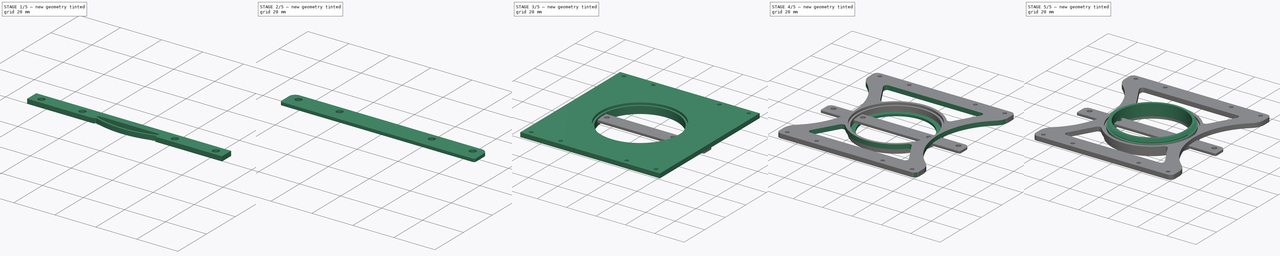
[diagram: build sequence overview — one tinted view per stage of 5, left to right]
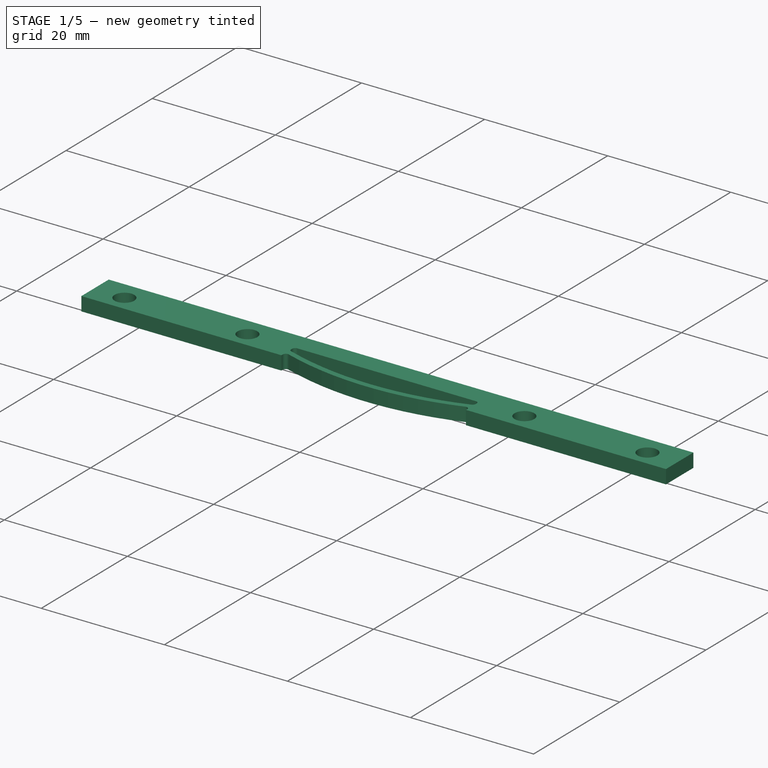
[diagram: stage 1 of 5 — iso view after this stage's code; geometry added in this stage tinted green]
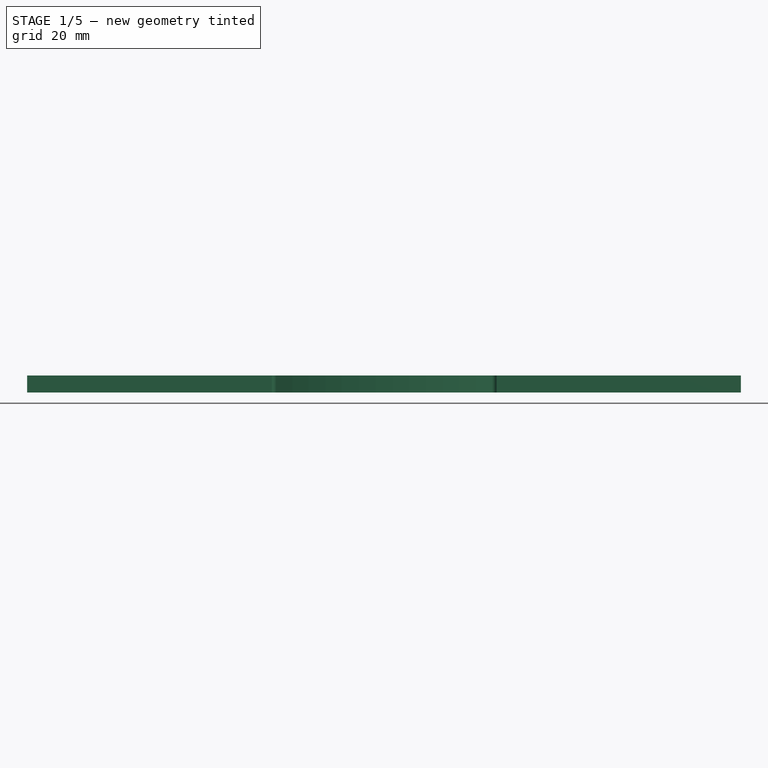
[diagram: stage 1 of 5 — front view after this stage's code; geometry added in this stage tinted green]
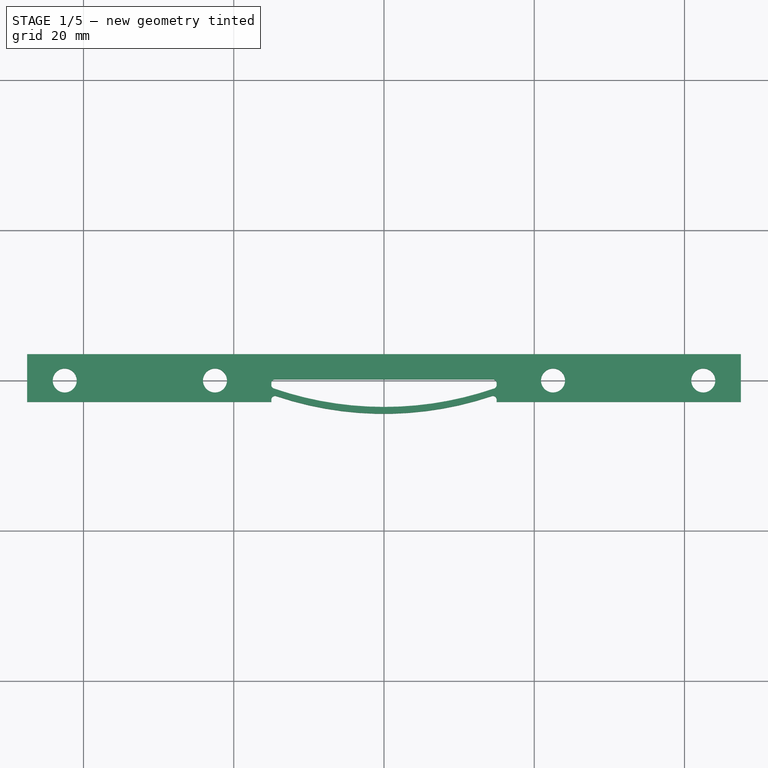
[diagram: stage 1 of 5 — top view after this stage's code; geometry added in this stage tinted green]
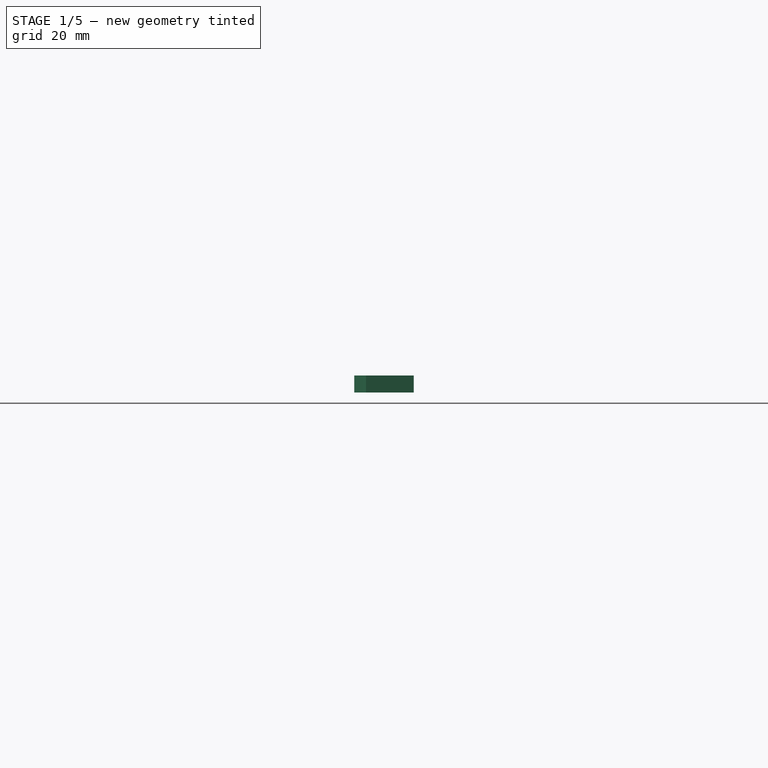
[diagram: stage 1 of 5 — right view after this stage's code; geometry added in this stage tinted green]
FCSTD DOCUMENT  (FreeCAD 1.0R39109 (Git))
Label: cokin-holder
License: All rights reserved
LicenseURL: http://en.wikipedia.org/wiki/All_rights_reserved
objects: Sketcher::SketchObject×14, PartDesign::Pad×8, PartDesign::Fillet×6, PartDesign::Body×4, PartDesign::Pocket×4, PartDesign::AdditiveHelix×1, PartDesign::Groove×1, PartDesign::SubShapeBinder×1, Spreadsheet::Sheet×1
note: 93 computed .brp shape members not serialized (recipe doc carries the construction recipe); baked Part::Feature solids carry a one-line shape summary decoded from their .brp

FEATURE [PartDesign::Body] Body001  label="filter-holder"
  AllowCompound = false
  Group = -> [Sketch006,Pad003,Sketch007,Pad004,Sketch008,Pocket,Sketch009,Pocket001,Sketch010,Pocket002,Fillet,Fillet001]
  Origin = -> Origin001
  Tip = -> Fillet001
FEATURE [Sketcher::SketchObject] Sketch011
  ArcFitTolerance = 1e-06
  AttachmentSupport = -> [XY_Plane002]
  FullyConstrained = true
  MakeInternals = false
  MapMode = 5
  sketch-geometry (8):
    g0: Circle CenterX=-42.5 CenterY=0 CenterZ=0 NormalX=0 NormalY=0 NormalZ=1 AngleXU=0 Radius=1.6
    g1: Circle CenterX=42.5 CenterY=0 CenterZ=0 NormalX=0 NormalY=0 NormalZ=1 AngleXU=0 Radius=1.6
    g2: LineSegment StartX=-47.5 StartY=3.5 StartZ=0 EndX=-47.5 EndY=-2.85 EndZ=0
    g3: LineSegment StartX=-47.5 StartY=-2.85 StartZ=0 EndX=47.5 EndY=-2.85 EndZ=0
    g4: LineSegment StartX=47.5 StartY=-2.85 StartZ=0 EndX=47.5 EndY=3.5 EndZ=0
    g5: LineSegment StartX=47.5 StartY=3.5 StartZ=0 EndX=-47.5 EndY=3.5 EndZ=0
    g6: Circle CenterX=-22.5 CenterY=0 CenterZ=0 NormalX=0 NormalY=0 NormalZ=1 AngleXU=0 Radius=1.6
    g7: Circle CenterX=22.5 CenterY=0 CenterZ=0 NormalX=0 NormalY=0 NormalZ=1 AngleXU=0 Radius=1.6
  constraints (21):
    c: PointOnObject(g0,g-1)
    c: Symmetric(g0,g1,g-2)
    c: Diameter(g0) = 3.2
    c: Equal(g0,g1)
    c: DistanceX(g0,g1) = 85
    c: Coincident(g2,g3)
    c: Coincident(g3,g4)
    c: Coincident(g4,g5)
    c: Coincident(g5,g2)
    c: Vertical(g2)
    c: Vertical(g4)
    c: Horizontal(g3)
    c: Symmetric(g4,g2,g-2)
    c: Distance(g5,g5) = 95
    c: Distance(g0,g5) = 3.5
    c: Distance(g0,g3) = 2.85
    c: PointOnObject(g6,g-1)
    c: Symmetric(g6,g7,g-2)
    c: Equal(g6,g7)
    c: Equal(g7,g0)
    c: DistanceX(g6,g7) = 45
FEATURE [PartDesign::Pad] Pad005
  Direction = (0,0,1)
  Length = 2.25
  Length2 = 10
  Profile = -> Sketch011
  ReferenceAxis = -> Sketch011 [N_Axis]
  Suppressed = false
  Type = 0
FEATURE [Sketcher::SketchObject] Sketch012
  ArcFitTolerance = 1e-06
  AttachmentSupport = -> [XY_Plane002]
  ExternalGeometry = -> [Pad005]
  FullyConstrained = true
  MakeInternals = false
  MapMode = 5
  sketch-geometry (4):
    g0: LineSegment StartX=-15 StartY=-2.85 StartZ=0 EndX=15 EndY=-2.85 EndZ=0
    g1: LineSegment StartX=15 StartY=-2.85 StartZ=0 EndX=15 EndY=0.15 EndZ=0
    g2: LineSegment StartX=15 StartY=0.15 StartZ=0 EndX=-15 EndY=0.15 EndZ=0
    g3: LineSegment StartX=-15 StartY=0.15 StartZ=0 EndX=-15 EndY=-2.85 EndZ=0
  constraints (11):
    c: Coincident(g0,g1)
    c: Coincident(g1,g2)
    c: Coincident(g2,g3)
    c: Coincident(g3,g0)
    c: Horizontal(g2)
    c: Vertical(g1)
    c: Vertical(g3)
    c: PointOnObject(g0,g-3)
    c: Symmetric(g0,g0,g-2)
    c: DistanceX(g2,g2) = 30
    c: Distance(g3,g3) = 3
FEATURE [PartDesign::Pocket] Pocket003
  BaseFeature = -> Pad005
  Direction = (0,0,-1)
  Length = 5
  Length2 = 5
  Midplane = true
  Profile = -> Sketch012
  ReferenceAxis = -> Sketch012 [N_Axis]
  Suppressed = false
  Type = 1
FEATURE [Sketcher::SketchObject] Sketch013
  ArcFitTolerance = 1e-06
  AttachmentSupport = -> [XY_Plane002]
  ExternalGeometry = -> [Pocket003]
  FullyConstrained = true
  MakeInternals = false
  MapMode = 5
  sketch-geometry (4):
    g0: ArcOfCircle CenterX=0 CenterY=40.5764 CenterZ=0 NormalX=0 NormalY=0 NormalZ=1 AngleXU=0 Radius=45 StartAngle=4.37255 EndAngle=5.05223
    g1: ArcOfCircle CenterX=0 CenterY=41.4764 CenterZ=0 NormalX=0 NormalY=0 NormalZ=1 AngleXU=0 Radius=45 StartAngle=4.37255 EndAngle=5.05223
    g2: LineSegment StartX=-15 StartY=-0.95 StartZ=0 EndX=-15 EndY=-1.85 EndZ=0
    g3: LineSegment StartX=15 StartY=-0.95 StartZ=0 EndX=15 EndY=-1.85 EndZ=0
  constraints (14):
    c: PointOnObject(g0,g-2)
    c: PointOnObject(g0,g-5)
    c: PointOnObject(g0,g-6)
    c: Radius(g0) = 45
    c: Distance(g0,g-5) = 2
    c: PointOnObject(g1,g-2)
    c: PointOnObject(g1,g-5)
    c: PointOnObject(g1,g-6)
    c: Equal(g1,g0)
    c: Distance(g1,g0) = 0.9
    c: Coincident(g2,g1)
    c: Coincident(g2,g0)
    c: Coincident(g3,g1)
    c: Coincident(g3,g0)
FEATURE [PartDesign::Pad] Pad006
  BaseFeature = -> Pocket003
  Direction = (0,0,1)
  Length = 10
  Length2 = 10
  Profile = -> Sketch013
  ReferenceAxis = -> Sketch013 [N_Axis]
  Suppressed = false
  Type = 3
  UpToFace = -> Pocket003 [Face5]
FEATURE [PartDesign::Fillet] Fillet002
  Base = -> Pad006 [Edge43,Edge45,Edge46,Edge44,Edge38,Edge40]
  BaseFeature = -> Pad006
  Radius = 0.5
  SupportTransform = false
  Suppressed = false
  UseAllEdges = false
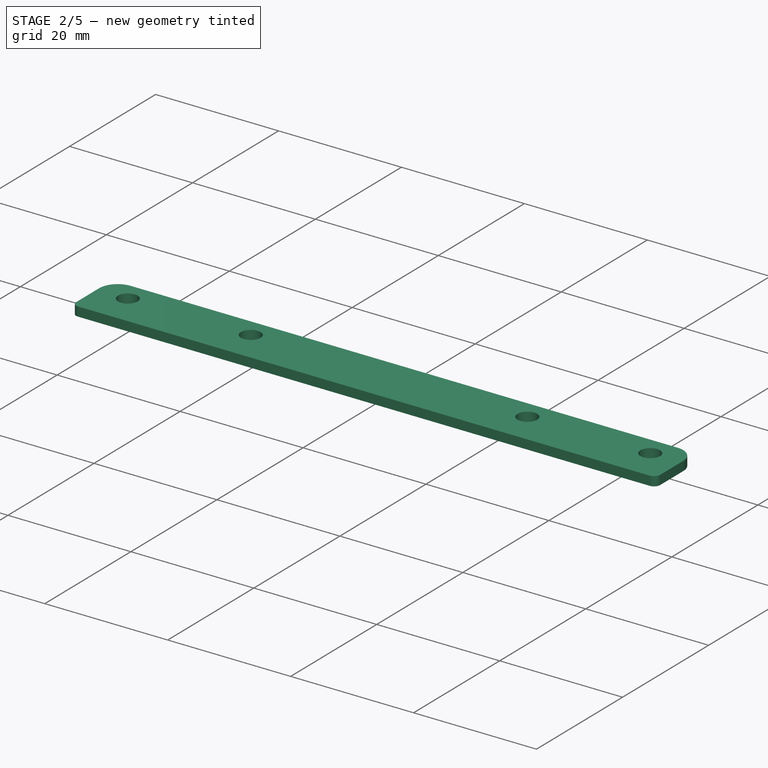
[diagram: stage 2 of 5 — iso view after this stage's code; geometry added in this stage tinted green]
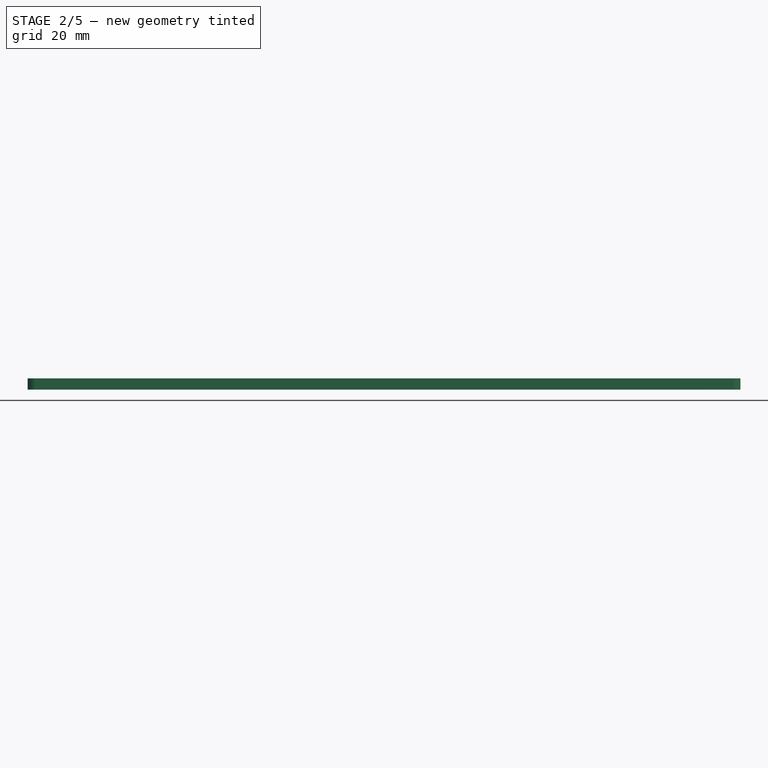
[diagram: stage 2 of 5 — front view after this stage's code; geometry added in this stage tinted green]
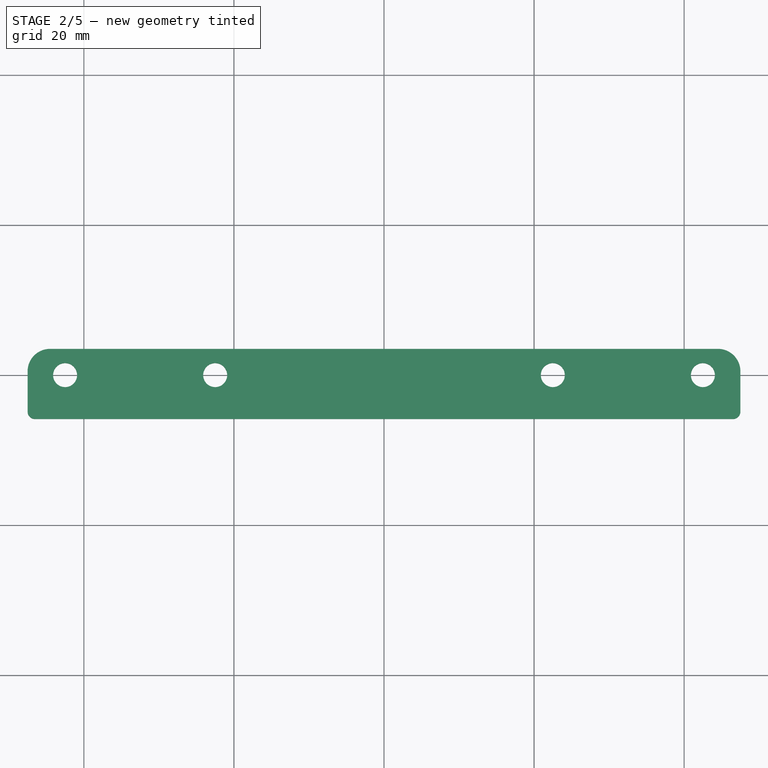
[diagram: stage 2 of 5 — top view after this stage's code; geometry added in this stage tinted green]
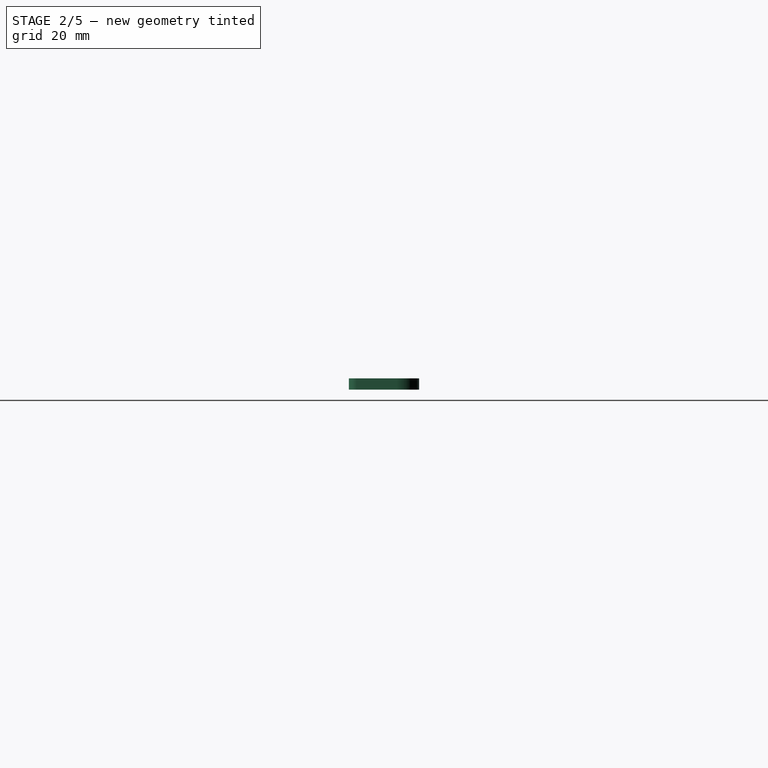
[diagram: stage 2 of 5 — right view after this stage's code; geometry added in this stage tinted green]
FEATURE [PartDesign::Fillet] Fillet004
  Base = -> Fillet002 [Edge25,Edge45]
  BaseFeature = -> Fillet002
  Radius = 0.2
  SupportTransform = false
  Suppressed = false
  UseAllEdges = false
FEATURE [PartDesign::Fillet] Fillet003
  Base = -> Fillet004 [Edge45,Edge36]
  BaseFeature = -> Fillet004
  Radius = 1
  SupportTransform = false
  Suppressed = false
  UseAllEdges = false
FEATURE [PartDesign::Fillet] Fillet005
  Base = -> Fillet003 [Edge38,Edge34]
  BaseFeature = -> Fillet003
  Radius = 3
  SupportTransform = false
  Suppressed = false
  UseAllEdges = false
FEATURE [PartDesign::Body] Body002  label="spring-plate"
  AllowCompound = false
  Group = -> [Sketch011,Pad005,Sketch012,Pocket003,Sketch013,Pad006,Fillet002,Fillet004,Fillet003,Fillet005]
  Origin = -> Origin002
  Tip = -> Fillet005
FEATURE [PartDesign::SubShapeBinder] Binder
  BindCopyOnChange = 0
  BindMode = 0
  ClaimChildren = false
  Context = -> Body003 [Binder.]
  Fuse = false
  MakeFace = true
  OffsetFill = false
  OffsetIntersection = false
  OffsetJoinType = 0
  OffsetOpenResult = false
  PartialLoad = false
  Relative = true
  Support = -> [Body002[Fillet005.Face25]]
  _Version = 2
FEATURE [Sketcher::SketchObject] Sketch014
  ArcFitTolerance = 1e-06
  AttachmentSupport = -> [Binder]
  ExternalGeometry = -> [Binder]
  FullyConstrained = true
  MakeInternals = false
  MapMode = 5
  Placement = pos=(0,0,2.25) rot=(0,0,1;0rad)
  sketch-geometry (16):
    g0: LineSegment StartX=-47.5 StartY=0.5 StartZ=0 EndX=-47.5 EndY=-4.85 EndZ=0
    g1: LineSegment StartX=-46.5 StartY=-5.85 StartZ=0 EndX=46.5 EndY=-5.85 EndZ=0
    g2: LineSegment StartX=47.5 StartY=-4.85 StartZ=0 EndX=47.5 EndY=0.5 EndZ=0
    g3: LineSegment StartX=44.5 StartY=3.5 StartZ=0 EndX=-44.5 EndY=3.5 EndZ=0
    g4: ArcOfCircle CenterX=44.5 CenterY=0.5 CenterZ=0 NormalX=0 NormalY=0 NormalZ=1 AngleXU=0 Radius=3 StartAngle=0 EndAngle=1.5708
    g5: GeomPoint [constr] X=47.5 Y=3.5 Z=0
    g6: ArcOfCircle CenterX=-44.5 CenterY=0.5 CenterZ=0 NormalX=0 NormalY=0 NormalZ=1 AngleXU=0 Radius=3 StartAngle=1.5708 EndAngle=3.14159
    g7: GeomPoint [constr] X=-47.5 Y=3.5 Z=0
    g8: Circle CenterX=-42.5 CenterY=0 CenterZ=0 NormalX=0 NormalY=0 NormalZ=1 AngleXU=0 Radius=1.6
    g9: Circle CenterX=-22.5 CenterY=0 CenterZ=0 NormalX=0 NormalY=0 NormalZ=1 AngleXU=0 Radius=1.6
    g10: Circle CenterX=22.5 CenterY=0 CenterZ=0 NormalX=0 NormalY=0 NormalZ=1 AngleXU=0 Radius=1.6
    g11: Circle CenterX=42.5 CenterY=0 CenterZ=0 NormalX=0 NormalY=0 NormalZ=1 AngleXU=0 Radius=1.6
    g12: ArcOfCircle CenterX=-46.5 CenterY=-4.85 CenterZ=0 NormalX=0 NormalY=0 NormalZ=1 AngleXU=0 Radius=1 StartAngle=3.14159 EndAngle=4.71239
    g13: GeomPoint [constr] X=-47.5 Y=-5.85 Z=0
    g14: ArcOfCircle CenterX=46.5 CenterY=-4.85 CenterZ=0 NormalX=0 NormalY=0 NormalZ=1 AngleXU=0 Radius=1 StartAngle=4.71239 EndAngle=6.28319
    g15: GeomPoint [constr] X=47.5 Y=-5.85 Z=0
  constraints (36):
    c: Vertical(g0)
    c: Vertical(g2)
    c: Horizontal(g1)
    c: Horizontal(g3)
    c: PointOnObject(g-5,g3)
    c: PointOnObject(g-4,g0)
    c: PointOnObject(g-6,g2)
    c: PointOnObject(g5,g3)
    c: PointOnObject(g5,g2)
    c: Tangent(g3,g4) = -1.5708
    c: Tangent(g2,g4) = -1.5708
    c: PointOnObject(g7,g3)
    c: PointOnObject(g7,g0)
    c: Tangent(g3,g6) = -1.5708
    c: Tangent(g0,g6) = -1.5708
    c: Equal(g-5,g6)
    c: Equal(g4,g6)
    c: Distance(g13,g-7) = 3
    c: Coincident(g8,g-8)
    c: Coincident(g9,g-9)
    c: Coincident(g10,g-10)
    c: Coincident(g11,g-11)
    c: Equal(g-8,g8)
    c: Equal(g-9,g9)
    c: Equal(g-10,g10)
    c: Equal(g-11,g11)
    c: PointOnObject(g13,g0)
    c: PointOnObject(g13,g1)
    c: Tangent(g0,g12) = -1.5708
    c: Tangent(g1,g12) = -1.5708
    c: PointOnObject(g15,g2)
    c: PointOnObject(g15,g1)
    c: Tangent(g2,g14) = -1.5708
    c: Tangent(g1,g14) = -1.5708
    c: Equal(g14,g12)
    c: Radius(g12) = 1
FEATURE [PartDesign::Pad] Pad007
  Direction = (0,0,1)
  Length = 1.5
  Length2 = 10
  Profile = -> Sketch014
  ReferenceAxis = -> Sketch014 [N_Axis]
  Suppressed = false
  Type = 0
FEATURE [PartDesign::Body] Body003  label="separator-plate"
  AllowCompound = false
  Group = -> [Binder,Sketch014,Pad007]
  Origin = -> Origin003
  Tip = -> Pad007
FEATURE [Spreadsheet::Sheet] Spreadsheet  label="Dimensions"
  cells = A1='Parameter; B1='Value; D1='Description; A2='FrictionRingInterference; B2(FrictionRingInterference)==0.1 mm; D2='Tune for reasonably tight fit; filter holder must resist but allow for rotation.; A3='FrictionRingLip; B3(FrictionRingLip)==1 mm; A4='FrictionRingLipDiameter; B4(FrictionRingLipDiameter)==FrictionRingOuterDiameter + 2 * FrictionRingLip; A5='FrictionRingLipDepth; B5(FrictionRingLipDepth)==1.5 mm; A6='ThreadNominalDiameter; B6(ThreadNominalDiameter)==49 mm; D6='Customize for lens (max 67mm); A7='ThreadDepth; B7(ThreadDepth)==3 mm; D7='Customize for lens; A8='ThreadPitch; B8(ThreadPitch)==0.75 mm; D8='Customize for lens; A9='ThreadH; B9(ThreadH)==0.866 * ThreadPitch; A10='ThreadHs; B10(ThreadHs)==5 / 8 * ThreadH; A11='ThreadMinorDiameter; B11(ThreadMinorDiameter)==ThreadNominalDiameter - 2 * ThreadHs; A12='ThreadFcs; B12(ThreadFcs)==ThreadPitch / 8; A13='FrictionRingWidth; B13(FrictionRingWidth)==3 mm; A14='FrictionRingDepth; B14(FrictionRingDepth)==5 mm; A15='FrictionRingInnerDiameter; B15(FrictionRingInnerDiameter)==ThreadNominalDiameter - 2 / 3 * FrictionRingWidth * 2; A16='FrictionRingOuterDiameter; B16(FrictionRingOuterDiameter)==ThreadNominalDiameter + 1 / 3 * FrictionRingWidth * 2; A17='PlateDepth; B17(PlateDepth)==3 mm
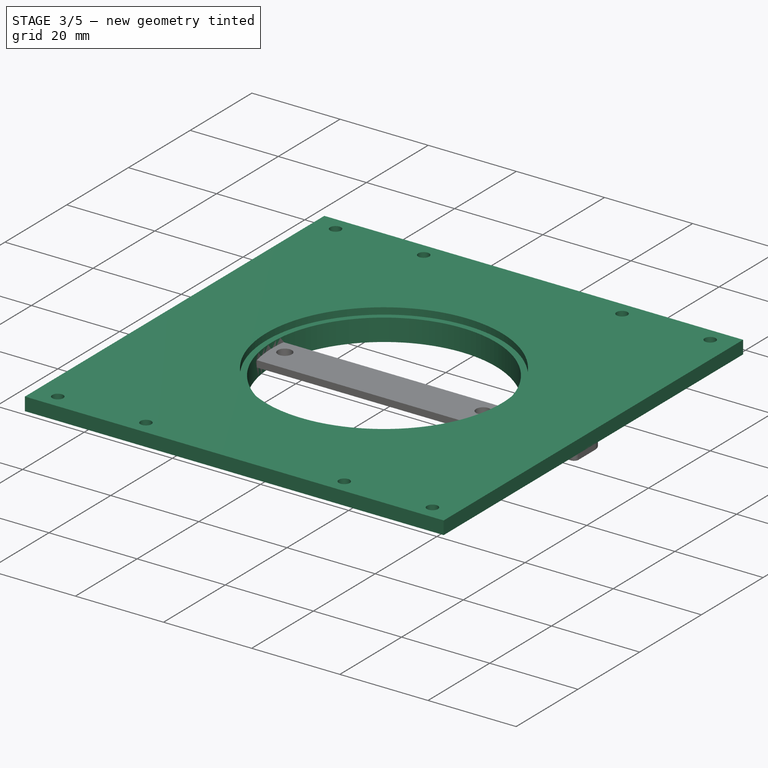
[diagram: stage 3 of 5 — iso view after this stage's code; geometry added in this stage tinted green]
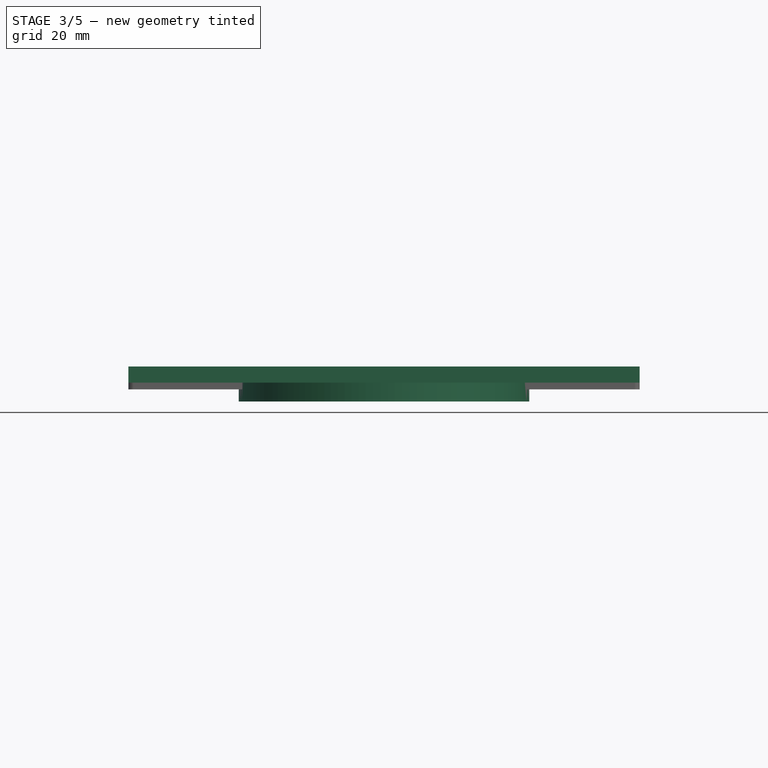
[diagram: stage 3 of 5 — front view after this stage's code; geometry added in this stage tinted green]
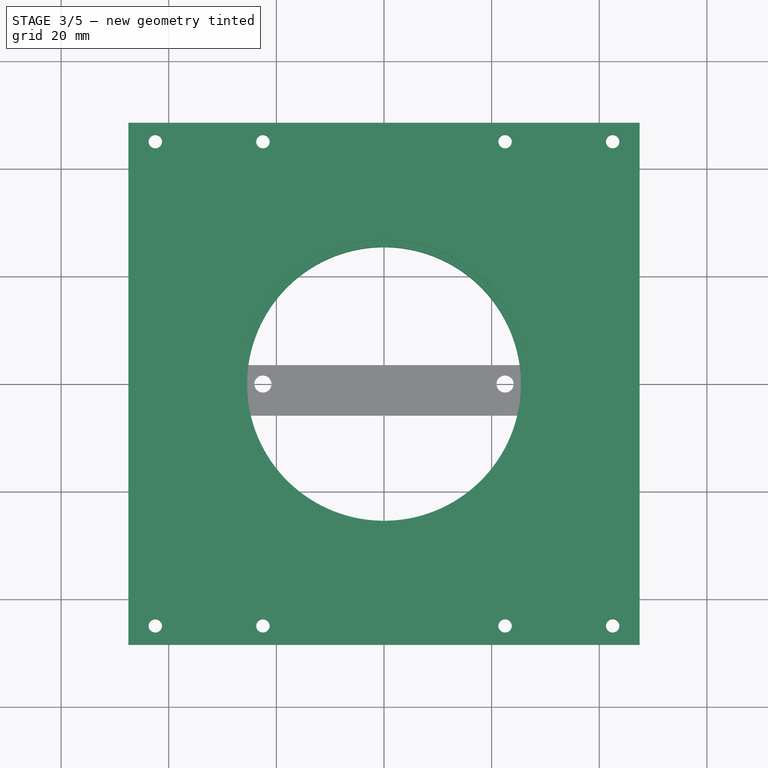
[diagram: stage 3 of 5 — top view after this stage's code; geometry added in this stage tinted green]
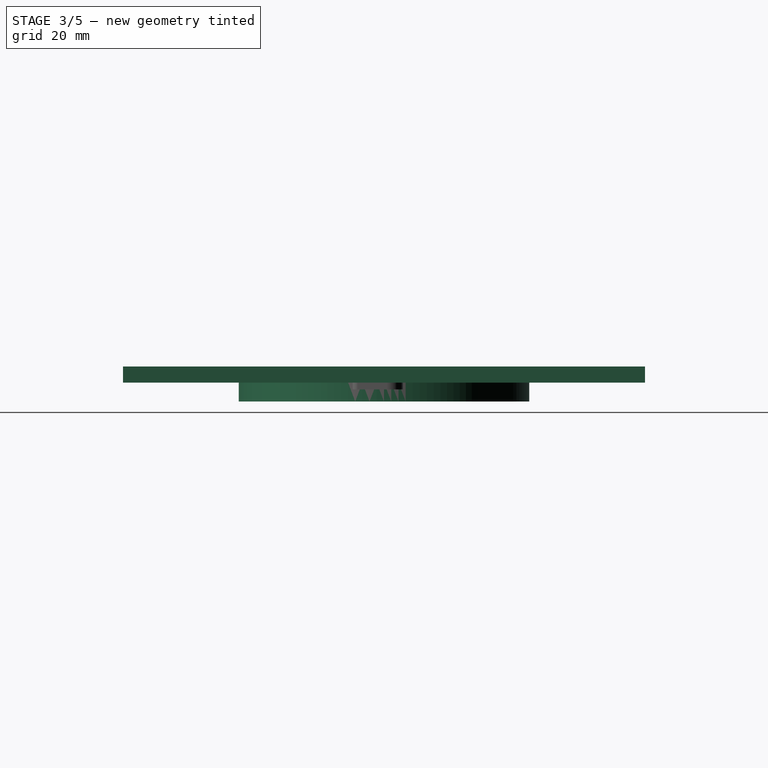
[diagram: stage 3 of 5 — right view after this stage's code; geometry added in this stage tinted green]
FEATURE [PartDesign::Body] Body  label="threaded-cap"
  AllowCompound = false
  Group = -> [Sketch,Pad,Sketch001,Pad001,Sketch002,Pad002,Sketch004,AdditiveHelix,Sketch005,Groove]
  Origin = -> Origin
  Tip = -> Groove
FEATURE [Sketcher::SketchObject] Sketch006
  ArcFitTolerance = 1e-06
  AttachmentSupport = -> [XY_Plane001]
  FullyConstrained = true
  MakeInternals = false
  MapMode = 5
  expr: Constraints[2] = <<Dimensions>>.FrictionRingOuterDiameter - <<Dimensions>>.FrictionRingInterference
  expr: Constraints[3] = <<Dimensions>>.FrictionRingOuterDiameter + <<Dimensions>>.FrictionRingWidth
  sketch-geometry (2):
    g0: Circle CenterX=0 CenterY=0 CenterZ=0 NormalX=0 NormalY=0 NormalZ=1 AngleXU=0 Radius=25.45
    g1: Circle CenterX=0 CenterY=0 CenterZ=0 NormalX=0 NormalY=0 NormalZ=1 AngleXU=0 Radius=27
  constraints (4):
    c: Coincident(g0,g-1)
    c: Coincident(g1,g0)
    c: Diameter(g0) = 50.9
    c: Diameter(g1) = 54
FEATURE [PartDesign::Pad] Pad003  label="FrictionRing001"
  Direction = (0,0,1)
  Length = 3.5
  Length2 = 10
  Profile = -> Sketch006
  ReferenceAxis = -> Sketch006 [N_Axis]
  Suppressed = false
  Type = 0
  expr: Length = <<Dimensions>>.FrictionRingDepth - <<Dimensions>>.FrictionRingLipDepth
FEATURE [Sketcher::SketchObject] Sketch007
  ArcFitTolerance = 1e-06
  AttachmentSupport = -> [Pad003]
  ExternalGeometry = -> [Pad003]
  FullyConstrained = true
  MakeInternals = false
  MapMode = 5
  Placement = pos=(0,0,3.5) rot=(0,0,1;0rad)
  sketch-geometry (6):
    g0: LineSegment StartX=-47.5 StartY=48.5 StartZ=0 EndX=-47.5 EndY=-48.5 EndZ=0
    g1: LineSegment StartX=-47.5 StartY=-48.5 StartZ=0 EndX=47.5 EndY=-48.5 EndZ=0
    g2: LineSegment StartX=47.5 StartY=-48.5 StartZ=0 EndX=47.5 EndY=48.5 EndZ=0
    g3: LineSegment StartX=47.5 StartY=48.5 StartZ=0 EndX=-47.5 EndY=48.5 EndZ=0
    g4: GeomPoint [constr] X=0 Y=0 Z=0
    g5: Circle CenterX=0 CenterY=0 CenterZ=0 NormalX=0 NormalY=0 NormalZ=1 AngleXU=0 Radius=25.45
  constraints (14):
    c: Coincident(g0,g1)
    c: Coincident(g1,g2)
    c: Coincident(g2,g3)
    c: Coincident(g3,g0)
    c: Vertical(g0)
    c: Vertical(g2)
    c: Horizontal(g1)
    c: Horizontal(g3)
    c: Symmetric(g2,g0,g4)
    c: Coincident(g4,g-1)
    c: Coincident(g5,g4)
    c: Equal(g5,g-3)
    c: DistanceX(g3,g3) = 95
    c: DistanceY(g2,g2) = 97
FEATURE [PartDesign::Pad] Pad004  label="Plate"
  BaseFeature = -> Pad003
  Direction = (0,0,1)
  Length = 3
  Length2 = 10
  Profile = -> Sketch007
  ReferenceAxis = -> Sketch007 [N_Axis]
  Suppressed = false
  Type = 0
  expr: Length = <<Dimensions>>.PlateDepth
FEATURE [Sketcher::SketchObject] Sketch008
  ArcFitTolerance = 1e-06
  AttachmentSupport = -> [Pad004]
  FullyConstrained = true
  MakeInternals = false
  MapMode = 5
  Placement = pos=(0,0,6.5) rot=(0,0,1;0rad)
  expr: Constraints[1] = <<Dimensions>>.FrictionRingLipDiameter * 1.01
  sketch-geometry (1):
    g0: Circle CenterX=0 CenterY=0 CenterZ=0 NormalX=0 NormalY=0 NormalZ=1 AngleXU=0 Radius=26.765
  constraints (2):
    c: Coincident(g0,g-1)
    c: Diameter(g0) = 53.53
FEATURE [PartDesign::Pocket] Pocket  label="LipRelief"
  BaseFeature = -> Pad004
  Direction = (0,0,-1)
  Length = 1.5
  Length2 = 5
  Profile = -> Sketch008
  ReferenceAxis = -> Sketch008 [N_Axis]
  Suppressed = false
  Type = 0
  expr: Length = <<Dimensions>>.PlateDepth - <<Dimensions>>.FrictionRingLipDepth
FEATURE [Sketcher::SketchObject] Sketch009
  ArcFitTolerance = 1e-06
  AttachmentSupport = -> [Pocket]
  FullyConstrained = true
  MakeInternals = false
  MapMode = 5
  Placement = pos=(0,0,6.5) rot=(0,0,1;0rad)
  sketch-geometry (10):
    g0: Circle CenterX=-42.5 CenterY=45 CenterZ=0 NormalX=0 NormalY=0 NormalZ=1 AngleXU=0 Radius=1.25
    g1: Circle CenterX=42.5 CenterY=45 CenterZ=0 NormalX=0 NormalY=0 NormalZ=1 AngleXU=0 Radius=1.25
    g2: Circle CenterX=42.5 CenterY=-45 CenterZ=0 NormalX=0 NormalY=0 NormalZ=1 AngleXU=0 Radius=1.25
    g3: Circle CenterX=-42.5 CenterY=-45 CenterZ=0 NormalX=0 NormalY=0 NormalZ=1 AngleXU=0 Radius=1.25
    g4: Circle CenterX=-22.5 CenterY=45 CenterZ=0 NormalX=0 NormalY=0 NormalZ=1 AngleXU=0 Radius=1.25
    g5: Circle CenterX=22.5 CenterY=45 CenterZ=0 NormalX=0 NormalY=0 NormalZ=1 AngleXU=0 Radius=1.25
    g6: LineSegment [constr] StartX=-42.5 StartY=45 StartZ=0 EndX=42.5 EndY=45 EndZ=0
    g7: LineSegment [constr] StartX=-42.5 StartY=-45 StartZ=0 EndX=42.5 EndY=-45 EndZ=0
    g8: Circle CenterX=-22.5 CenterY=-45 CenterZ=0 NormalX=0 NormalY=0 NormalZ=1 AngleXU=0 Radius=1.25
    g9: Circle CenterX=22.5 CenterY=-45 CenterZ=0 NormalX=0 NormalY=0 NormalZ=1 AngleXU=0 Radius=1.25
  constraints (23):
    c: Symmetric(g0,g1,g-2)
    c: Symmetric(g0,g3,g-1)
    c: Symmetric(g3,g2,g-2)
    c: Equal(g0,g1)
    c: Equal(g1,g3)
    c: Equal(g3,g2)
    c: Diameter(g0) = 2.5
    c: DistanceY(g3,g0) = 90
    c: DistanceX(g0,g1) = 85
    c: Symmetric(g4,g5,g-2)
    c: Coincident(g6,g0)
    c: Coincident(g6,g1)
    c: PointOnObject(g4,g6)
    c: DistanceX(g4,g5) = 45
    c: Equal(g4,g0)
    c: Equal(g0,g5)
    c: Coincident(g7,g3)
    c: Coincident(g7,g2)
    c: PointOnObject(g8,g7)
    c: Equal(g8,g3)
    c: Equal(g3,g9)
    c: Symmetric(g8,g9,g-2)
    c: DistanceX(g8,g9) = 45
FEATURE [PartDesign::Pocket] Pocket001  label="ScrewHoles"
  BaseFeature = -> Pocket
  Direction = (0,0,-1)
  Length = 5
  Length2 = 5
  Profile = -> Sketch009
  ReferenceAxis = -> Sketch009 [N_Axis]
  Suppressed = false
  Type = 1
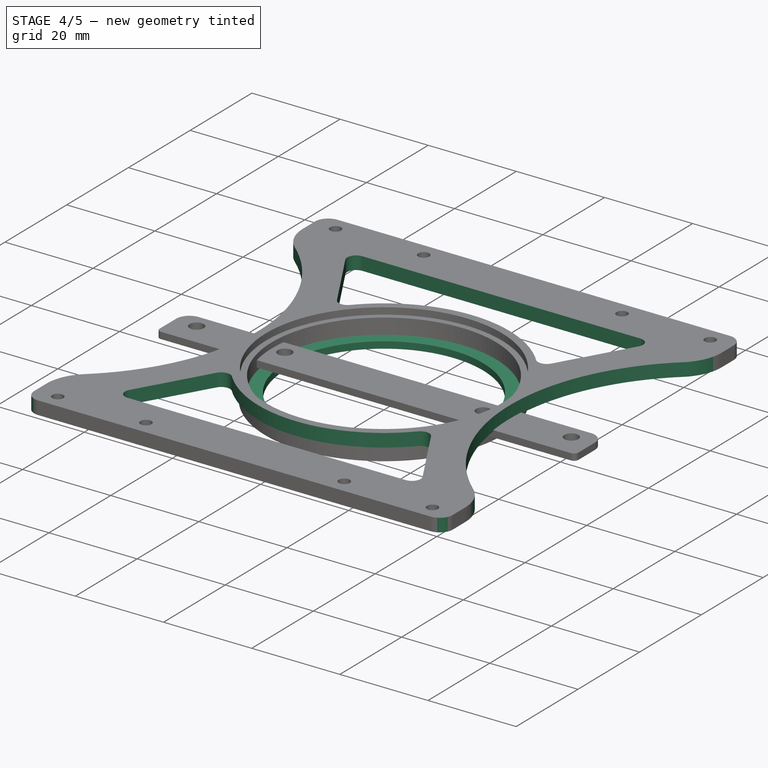
[diagram: stage 4 of 5 — iso view after this stage's code; geometry added in this stage tinted green]
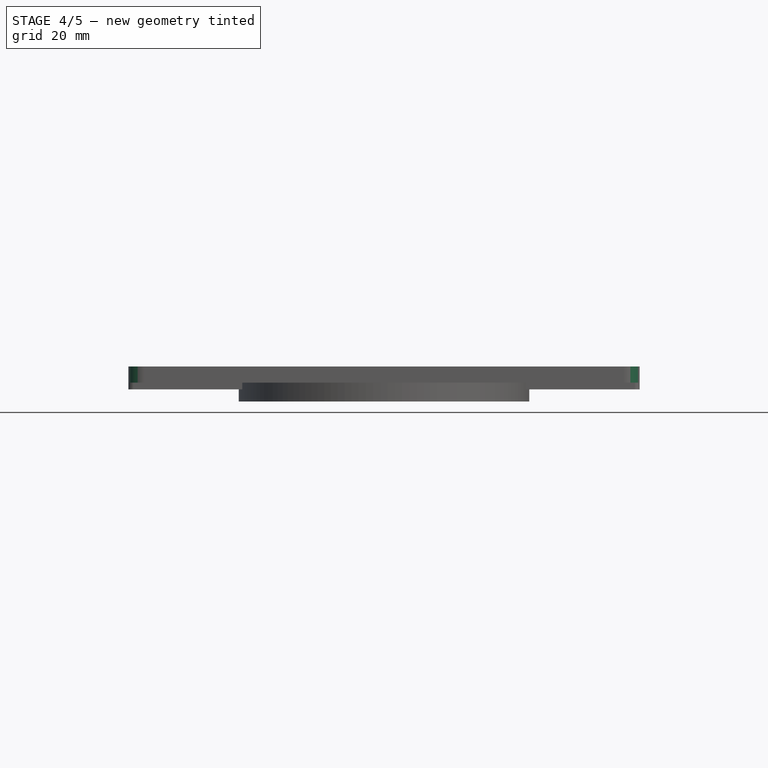
[diagram: stage 4 of 5 — front view after this stage's code; geometry added in this stage tinted green]
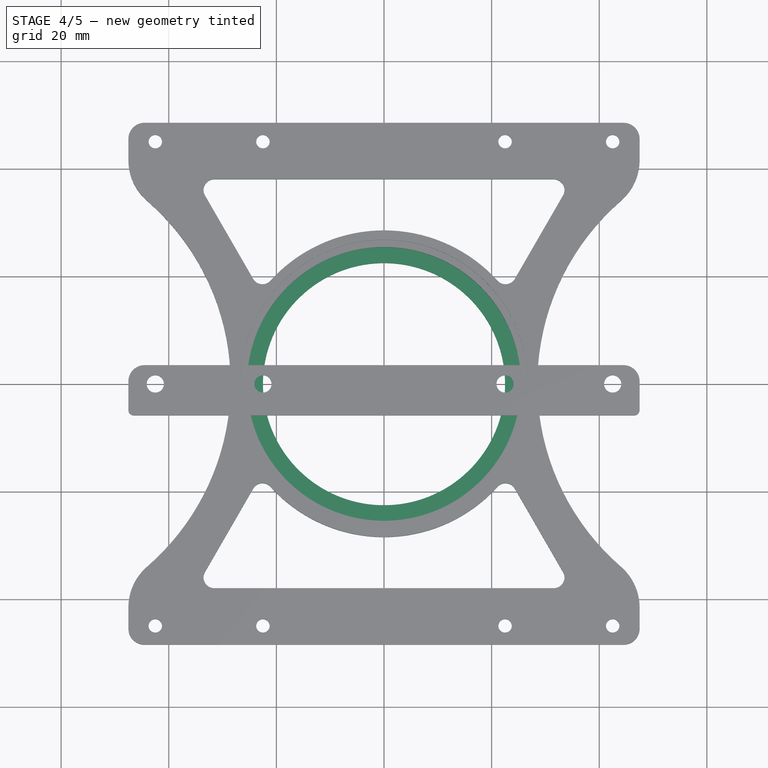
[diagram: stage 4 of 5 — top view after this stage's code; geometry added in this stage tinted green]
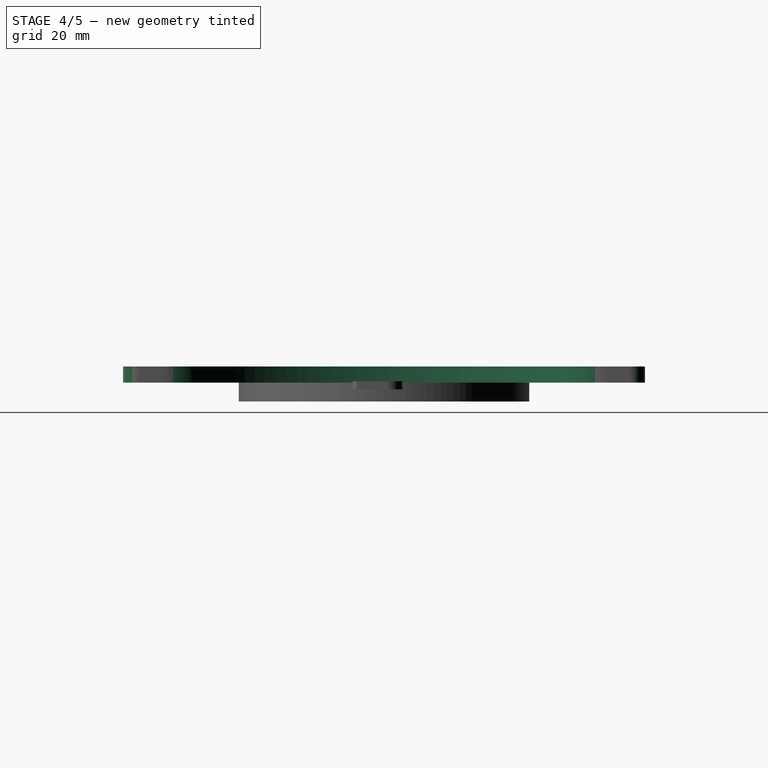
[diagram: stage 4 of 5 — right view after this stage's code; geometry added in this stage tinted green]
FEATURE [Sketcher::SketchObject] Sketch
  ArcFitTolerance = 1e-06
  AttachmentSupport = -> [XY_Plane]
  FullyConstrained = true
  MakeInternals = false
  MapMode = 5
  expr: Constraints[1] = <<Dimensions>>.FrictionRingLipDiameter
  expr: Constraints[3] = <<Dimensions>>.FrictionRingInnerDiameter
  sketch-geometry (2):
    g0: Circle CenterX=0 CenterY=0 CenterZ=0 NormalX=0 NormalY=0 NormalZ=1 AngleXU=0 Radius=26.5
    g1: Circle CenterX=0 CenterY=0 CenterZ=0 NormalX=0 NormalY=0 NormalZ=1 AngleXU=0 Radius=22.5
  constraints (4):
    c: Coincident(g0,g-1)
    c: Diameter(g0) = 53
    c: Coincident(g1,g0)
    c: Diameter(g1) = 45
FEATURE [PartDesign::Pad] Pad  label="Lip"
  Direction = (0,0,1)
  Length = 1.5
  Length2 = 10
  Profile = -> Sketch
  ReferenceAxis = -> Sketch [N_Axis]
  Suppressed = false
  Type = 0
  expr: Length = <<Dimensions>>.FrictionRingLipDepth
FEATURE [Sketcher::SketchObject] Sketch010
  ArcFitTolerance = 1e-06
  AttachmentSupport = -> [Pocket001]
  ExternalGeometry = -> [Pocket001]
  FullyConstrained = true
  MakeInternals = false
  MapMode = 5
  Placement = pos=(0,0,6.5) rot=(0,0,1;0rad)
  expr: Constraints[2] = <<Dimensions>>.ThreadNominalDiameter * 1.5
  expr: Constraints[50] = (<<Dimensions>>.FrictionRingOuterDiameter + 6 mm) / 2
  sketch-geometry (22):
    g0: Circle CenterX=-73.5 CenterY=0 CenterZ=0 NormalX=0 NormalY=0 NormalZ=1 AngleXU=0 Radius=45
    g1: Circle CenterX=73.5 CenterY=0 CenterZ=0 NormalX=0 NormalY=0 NormalZ=1 AngleXU=0 Radius=45
    g2: LineSegment StartX=-31.5359 StartY=38 StartZ=0 EndX=31.5359 EndY=38 EndZ=0
    g3: ArcOfCircle CenterX=0 CenterY=0 CenterZ=0 NormalX=0 NormalY=0 NormalZ=1 AngleXU=0 Radius=28.5 StartAngle=0.73697 EndAngle=2.40462
    g4: LineSegment StartX=-33.2679 StartY=35 StartZ=0 EndX=-24.3175 EndY=19.4974 EndZ=0
    g5: LineSegment StartX=33.2679 StartY=35 StartZ=0 EndX=24.3175 EndY=19.4974 EndZ=0
    g6: ArcOfCircle CenterX=-31.5359 CenterY=36 CenterZ=0 NormalX=0 NormalY=0 NormalZ=1 AngleXU=0 Radius=2 StartAngle=1.5708 EndAngle=3.66519
    g7: GeomPoint [constr] X=-35 Y=38 Z=0
    g8: ArcOfCircle CenterX=31.5359 CenterY=36 CenterZ=0 NormalX=0 NormalY=0 NormalZ=1 AngleXU=0 Radius=2 StartAngle=5.75959 EndAngle=7.85398
    g9: GeomPoint [constr] X=35 Y=38 Z=0
    g10: ArcOfCircle CenterX=22.5855 CenterY=20.4974 CenterZ=0 NormalX=0 NormalY=0 NormalZ=1 AngleXU=0 Radius=2 StartAngle=3.87856 EndAngle=5.75959
    g11: ArcOfCircle CenterX=-22.5855 CenterY=20.4974 CenterZ=0 NormalX=0 NormalY=0 NormalZ=1 AngleXU=0 Radius=2 StartAngle=3.66519 EndAngle=5.54622
    g12: LineSegment StartX=-31.5359 StartY=-38 StartZ=0 EndX=31.5359 EndY=-38 EndZ=0
    g13: ArcOfCircle CenterX=-1.65e-14 CenterY=3e-16 CenterZ=0 NormalX=0 NormalY=0 NormalZ=1 AngleXU=0 Radius=28.5 StartAngle=3.87856 EndAngle=5.54622
    g14: LineSegment StartX=-33.2679 StartY=-35 StartZ=0 EndX=-24.3175 EndY=-19.4974 EndZ=0
    g15: LineSegment StartX=33.2679 StartY=-35 StartZ=0 EndX=24.3175 EndY=-19.4974 EndZ=0
    g16: ArcOfCircle CenterX=-31.5359 CenterY=-36 CenterZ=0 NormalX=0 NormalY=0 NormalZ=1 AngleXU=0 Radius=2 StartAngle=2.61799 EndAngle=4.71239
    g17: GeomPoint [constr] X=-35 Y=-38 Z=0
    g18: ArcOfCircle CenterX=31.5359 CenterY=-36 CenterZ=0 NormalX=0 NormalY=0 NormalZ=1 AngleXU=0 Radius=2 StartAngle=4.71239 EndAngle=6.80678
    g19: GeomPoint [constr] X=35 Y=-38 Z=0
    g20: ArcOfCircle CenterX=22.5855 CenterY=-20.4974 CenterZ=0 NormalX=0 NormalY=0 NormalZ=1 AngleXU=0 Radius=2 StartAngle=0.523599 EndAngle=2.40462
    g21: ArcOfCircle CenterX=-22.5855 CenterY=-20.4974 CenterZ=0 NormalX=0 NormalY=0 NormalZ=1 AngleXU=0 Radius=2 StartAngle=0.73697 EndAngle=2.61799
  constraints (51):
    c: PointOnObject(g0,g-1)
    c: Symmetric(g0,g1,g-2)
    c: Distance(g0,g-1) = 73.5
    c: Equal(g0,g1)
    c: Symmetric(g9,g7,g-2)
    c: DistanceX(g7,g9) = 70
    c: Coincident(g3,g-1)
    c: Distance(g3,g2) = 38
    c: PointOnObject(g7,g2)
    c: PointOnObject(g7,g4)
    c: Tangent(g2,g6) = 1.5708
    c: Tangent(g4,g6) = -1.5708
    c: PointOnObject(g9,g2)
    c: PointOnObject(g9,g5)
    c: Tangent(g2,g8) = 1.5708
    c: Tangent(g5,g8) = 1.5708
    c: Tangent(g5,g10) = 1.5708
    c: Tangent(g3,g10) = 1.5708
    c: Tangent(g4,g11) = -1.5708
    c: Tangent(g3,g11) = 1.5708
    c: Equal(g6,g8)
    c: Radius(g6) = 2
    c: Equal(g10,g11)
    c: Radius(g10) = 2
    c: Angle(g4,g2) = 1.0472
    c: Angle(g2,g5) = 1.0472
    c: Symmetric(g2,g12,g-1)
    c: Symmetric(g2,g12,g-1)
    c: Equal(g3,g13)
    c: Symmetric(g3,g13,g-1)
    c: Symmetric(g3,g13,g-1)
    c: Symmetric(g4,g14,g-1)
    c: Symmetric(g4,g14,g-1)
    c: Symmetric(g5,g15,g-1)
    c: Symmetric(g5,g15,g-1)
    c: Equal(g6,g16)
    c: Symmetric(g6,g16,g-1)
    c: Symmetric(g6,g16,g-1)
    c: Symmetric(g7,g17,g-1)
    c: Equal(g8,g18)
    c: Symmetric(g8,g18,g-1)
    c: Symmetric(g8,g18,g-1)
    c: Symmetric(g9,g19,g-1)
    c: Equal(g10,g20)
    c: Symmetric(g10,g20,g-1)
    c: Symmetric(g10,g20,g-1)
    c: Equal(g11,g21)
    c: Symmetric(g11,g21,g-1)
    c: Symmetric(g11,g21,g-1)
    c: Tangent(g0,g3)
    c: Radius(g3) = 28.5
FEATURE [PartDesign::Pocket] Pocket002  label="WeightReduction"
  BaseFeature = -> Pocket001
  Direction = (0,0,-1)
  Length = 5
  Length2 = 5
  Profile = -> Sketch010
  ReferenceAxis = -> Sketch010 [N_Axis]
  Suppressed = false
  Type = 1
FEATURE [PartDesign::Fillet] Fillet
  Base = -> Pocket002 [Edge46,Edge44,Edge52,Edge56]
  BaseFeature = -> Pocket002
  Radius = 10
  SupportTransform = false
  Suppressed = false
  UseAllEdges = false
FEATURE [PartDesign::Fillet] Fillet001
  Base = -> Fillet [Edge44,Edge58,Edge40,Edge54]
  BaseFeature = -> Fillet
  Radius = 3
  SupportTransform = false
  Suppressed = false
  UseAllEdges = false
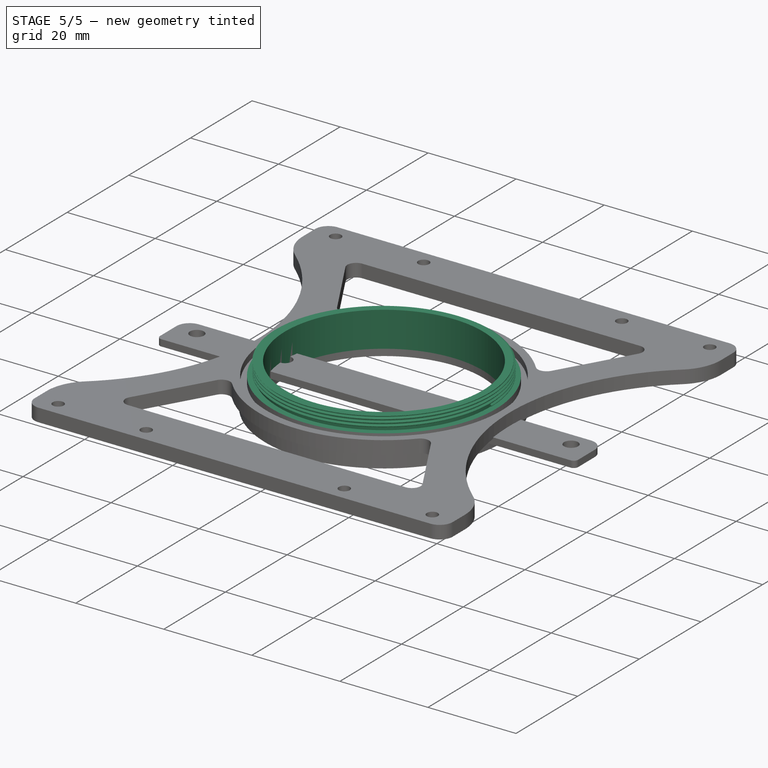
[diagram: stage 5 of 5 — iso view after this stage's code; geometry added in this stage tinted green]
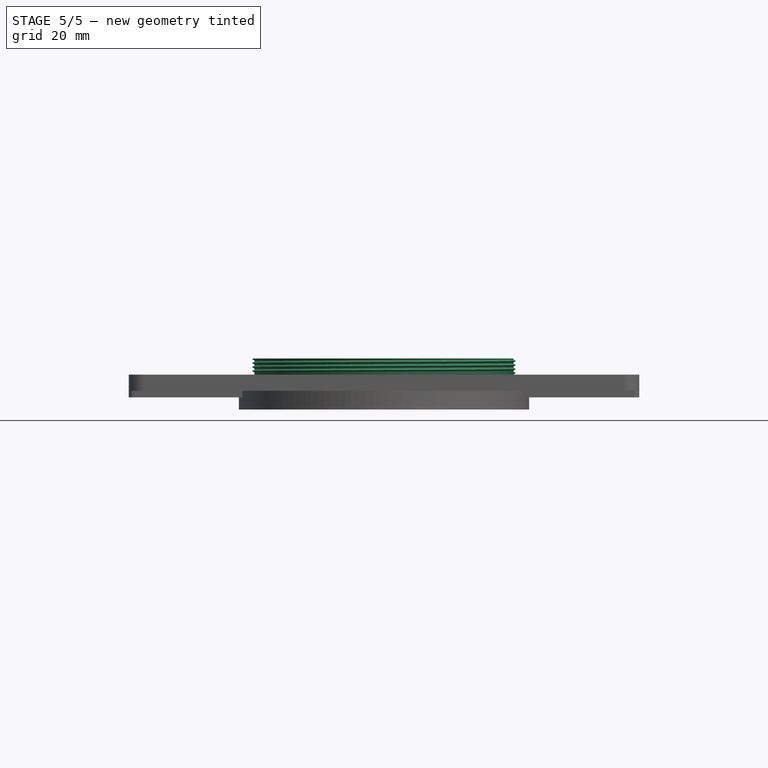
[diagram: stage 5 of 5 — front view after this stage's code; geometry added in this stage tinted green]
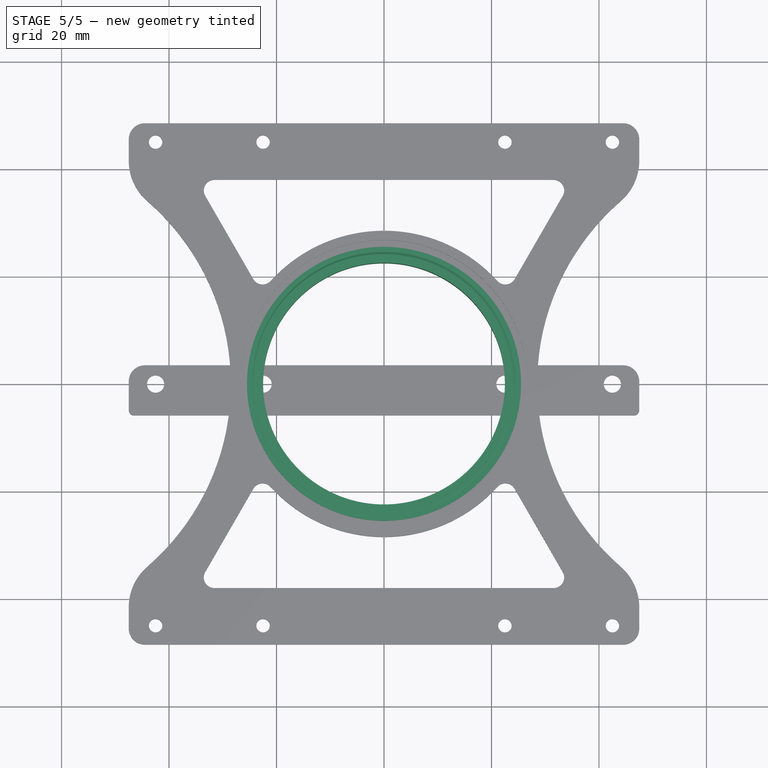
[diagram: stage 5 of 5 — top view after this stage's code; geometry added in this stage tinted green]
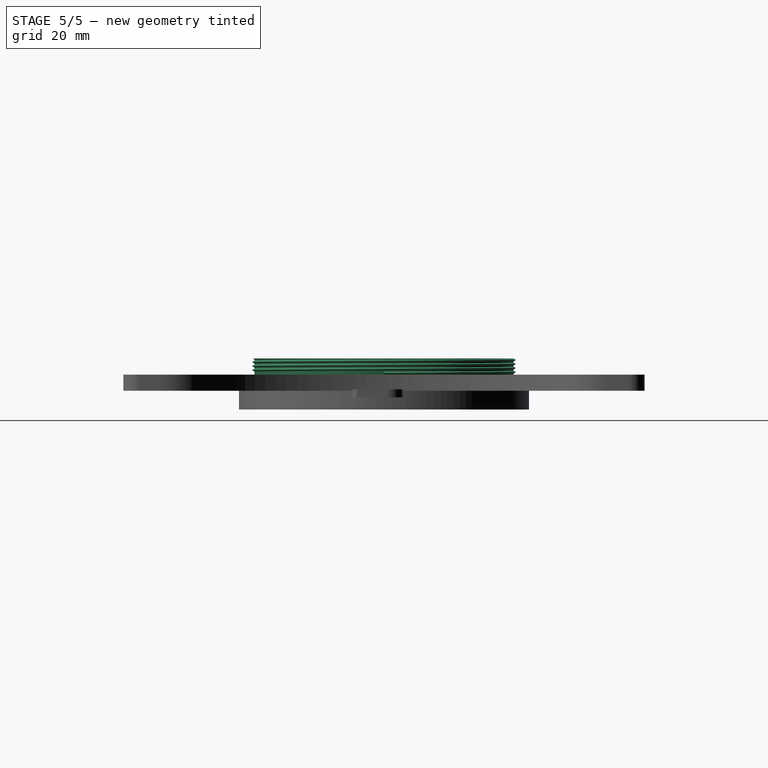
[diagram: stage 5 of 5 — right view after this stage's code; geometry added in this stage tinted green]
FEATURE [Sketcher::SketchObject] Sketch001
  ArcFitTolerance = 1e-06
  AttachmentSupport = -> [Pad]
  ExternalGeometry = -> [Pad]
  FullyConstrained = true
  MakeInternals = false
  MapMode = 5
  Placement = pos=(0,0,1.5) rot=(0,0,1;0rad)
  expr: Constraints[3] = <<Dimensions>>.FrictionRingOuterDiameter
  sketch-geometry (2):
    g0: Circle CenterX=0 CenterY=0 CenterZ=0 NormalX=0 NormalY=0 NormalZ=1 AngleXU=0 Radius=22.5
    g1: Circle CenterX=0 CenterY=0 CenterZ=0 NormalX=0 NormalY=0 NormalZ=1 AngleXU=0 Radius=25.5
  constraints (4):
    c: Coincident(g0,g-1)
    c: Equal(g0,g-3)
    c: Coincident(g1,g0)
    c: Diameter(g1) = 51
FEATURE [PartDesign::Pad] Pad001  label="FrictionRing"
  BaseFeature = -> Pad
  Direction = (0,0,1)
  Length = 5
  Length2 = 10
  Profile = -> Sketch001
  ReferenceAxis = -> Sketch001 [N_Axis]
  Suppressed = false
  Type = 0
FEATURE [Sketcher::SketchObject] Sketch002
  ArcFitTolerance = 1e-06
  AttachmentSupport = -> [Pad001]
  ExternalGeometry = -> [Pad001]
  FullyConstrained = true
  MakeInternals = false
  MapMode = 5
  Placement = pos=(0,0,6.5) rot=(0,0,1;0rad)
  expr: Constraints[3] = <<Dimensions>>.ThreadMinorDiameter
  sketch-geometry (2):
    g0: Circle CenterX=0 CenterY=0 CenterZ=0 NormalX=0 NormalY=0 NormalZ=1 AngleXU=0 Radius=22.5
    g1: Circle CenterX=0 CenterY=0 CenterZ=0 NormalX=0 NormalY=0 NormalZ=1 AngleXU=0 Radius=24.0941
  constraints (4):
    c: Coincident(g0,g-1)
    c: Equal(g0,g-3)
    c: Coincident(g1,g0)
    c: Diameter(g1) = 48.1881
FEATURE [PartDesign::Pad] Pad002  label="ThreadBase"
  BaseFeature = -> Pad001
  Direction = (0,0,1)
  Length = 3
  Length2 = 10
  Profile = -> Sketch002
  ReferenceAxis = -> Sketch002 [N_Axis]
  Suppressed = false
  Type = 0
  expr: Length = <<Dimensions>>.ThreadDepth
FEATURE [Sketcher::SketchObject] Sketch004
  ArcFitTolerance = 1e-06
  AttachmentSupport = -> [XZ_Plane]
  ExternalGeometry = -> [Pad002]
  FullyConstrained = true
  MakeInternals = false
  MapMode = 5
  Placement = pos=(0,0,0) rot=(1,0,0;1.5708rad)
  expr: Constraints[11] = <<Dimensions>>.ThreadMinorDiameter / 2 + <<Dimensions>>.ThreadHs
  expr: Constraints[7] = <<Dimensions>>.ThreadFcs
  expr: Constraints[9] = <<Dimensions>>.ThreadMinorDiameter / 2
  sketch-geometry (4):
    g0: LineSegment StartX=24.0941 StartY=6.5 StartZ=0 EndX=24.5 EndY=6.73437 EndZ=0
    g1: LineSegment StartX=24.5 StartY=6.73437 StartZ=0 EndX=24.5 EndY=6.82812 EndZ=0
    g2: LineSegment StartX=24.5 StartY=6.82812 StartZ=0 EndX=24.0941 EndY=7.06249 EndZ=0
    g3: LineSegment StartX=24.0941 StartY=7.06249 StartZ=0 EndX=24.0941 EndY=6.5 EndZ=0
  constraints (12):
    c: Coincident(g1,g0)
    c: Vertical(g1)
    c: Coincident(g2,g1)
    c: Coincident(g3,g2)
    c: Coincident(g3,g0)
    c: Equal(g2,g0)
    c: Angle(g2,g0) = 1.0472
    c: DistanceY(g1,g1) = 0.09375
    c: Vertical(g3)
    c: Distance(g0,g-2) = 24.0941
    c: PointOnObject(g0,g-3)
    c: Distance(g0,g-2) = 24.5
FEATURE [PartDesign::AdditiveHelix] AdditiveHelix  label="Thread"
  Angle = 0
  Axis = (0,2e-16,1)
  Base = (0,0,0)
  BaseFeature = -> Pad002
  Growth = 0
  HasBeenEdited = true
  Height = 3
  LeftHanded = false
  Mode = 0
  Outside = false
  Pitch = 0.75
  Profile = -> Sketch004
  ReferenceAxis = -> Sketch004 [V_Axis]
  Suppressed = false
  Tolerance = 0.1
  Turns = 4
  expr: Height = <<Dimensions>>.ThreadDepth
  expr: Pitch = <<Dimensions>>.ThreadPitch
FEATURE [Sketcher::SketchObject] Sketch005
  ArcFitTolerance = 1e-06
  AttachmentSupport = -> [XZ_Plane]
  ExternalGeometry = -> [AdditiveHelix]
  FullyConstrained = true
  MakeInternals = false
  MapMode = 5
  Placement = pos=(0,0,0) rot=(1,0,0;1.5708rad)
  expr: Constraints[10] = <<Dimensions>>.ThreadDepth
  expr: Constraints[8] = <<Dimensions>>.ThreadMinorDiameter / 2
  sketch-geometry (4):
    g0: LineSegment StartX=0 StartY=33.5941 StartZ=0 EndX=24.0941 EndY=9.5 EndZ=0
    g1: LineSegment StartX=24.0941 StartY=9.5 StartZ=0 EndX=44.0941 EndY=9.5 EndZ=0
    g2: LineSegment StartX=44.0941 StartY=9.5 StartZ=0 EndX=44.0941 EndY=33.5941 EndZ=0
    g3: LineSegment StartX=44.0941 StartY=33.5941 StartZ=0 EndX=0 EndY=33.5941 EndZ=0
  constraints (12):
    c: Coincident(g0,g1)
    c: Coincident(g1,g2)
    c: Coincident(g2,g3)
    c: Coincident(g3,g0)
    c: Vertical(g2)
    c: Horizontal(g1)
    c: Horizontal(g3)
    c: Angle(g0,g3) = 0.785398
    c: Distance(g0,g-2) = 24.0941
    c: Distance(g1,g1) = 20
    c: Distance(g-3,g1) = 3
    c: PointOnObject(g0,g-2)
FEATURE [PartDesign::Groove] Groove  label="ThreadRelief"
  Angle = 360
  Angle2 = 60
  Axis = (0,2e-16,1)
  Base = (0,0,0)
  BaseFeature = -> AdditiveHelix
  Profile = -> Sketch005
  ReferenceAxis = -> Sketch005 [V_Axis]
  Suppressed = false
  Type = 0
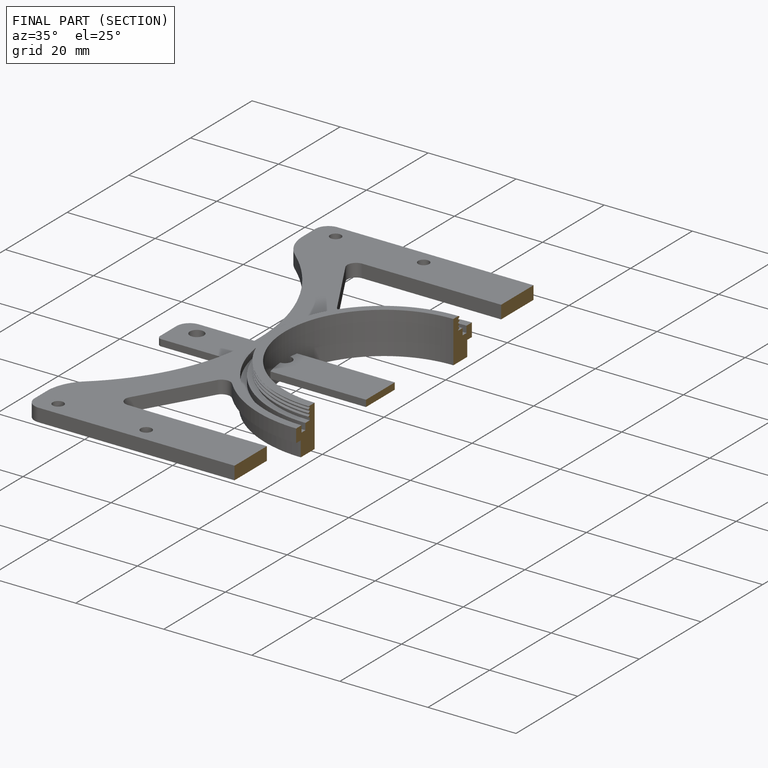
[diagram: finished part — half-section view (interior)]
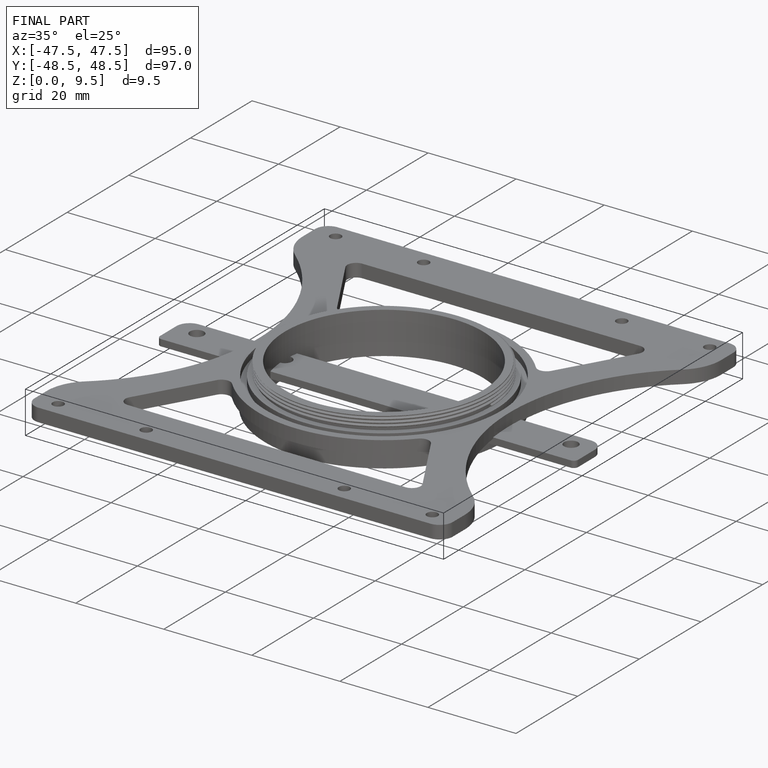
[diagram: finished part — iso view with bounding-box wireframe]
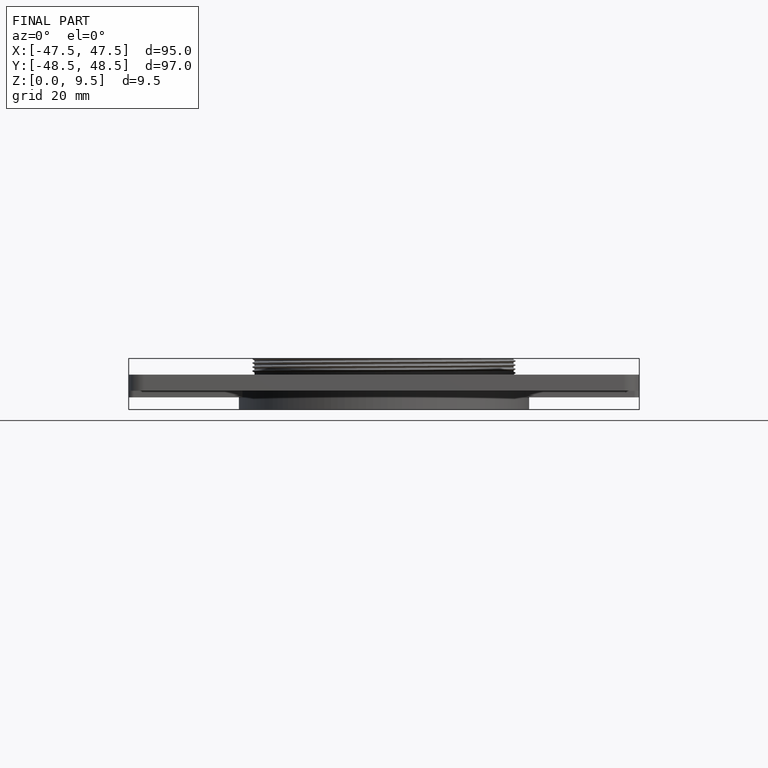
[diagram: finished part — front view with bounding-box wireframe]
